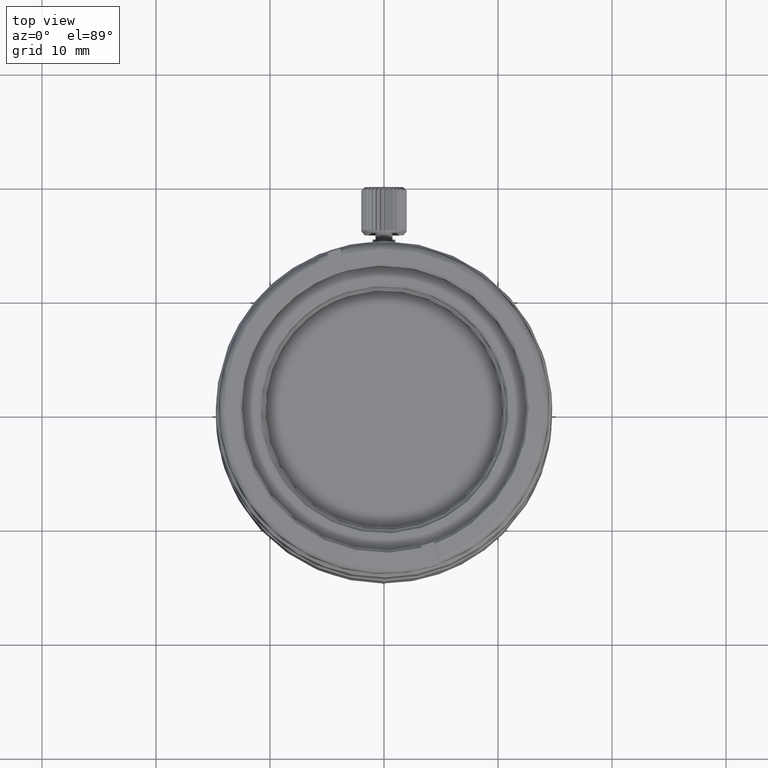
[diagram: clean part render]
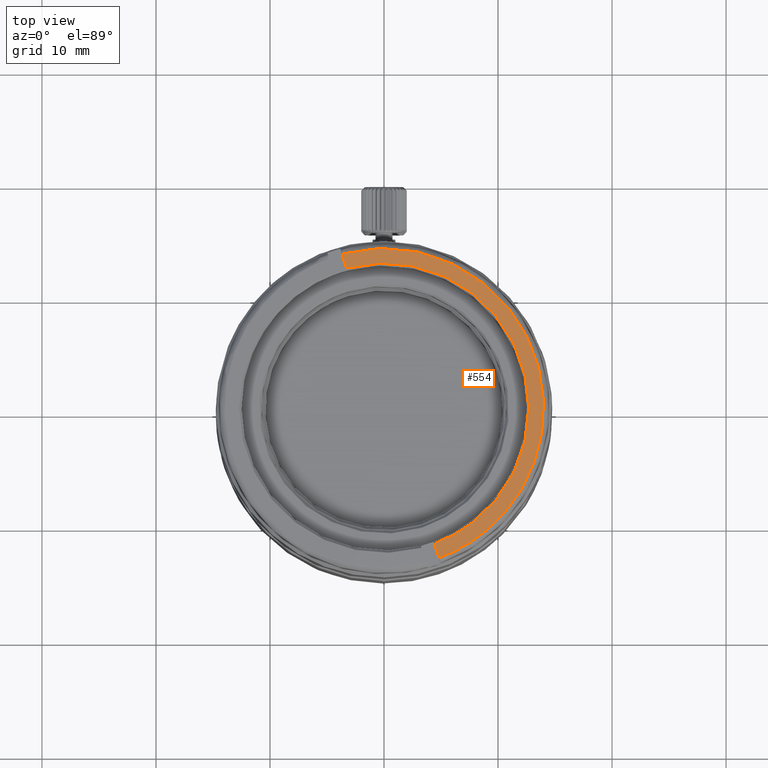
[diagram: same view with one face highlighted and labeled with its STEP entity id]
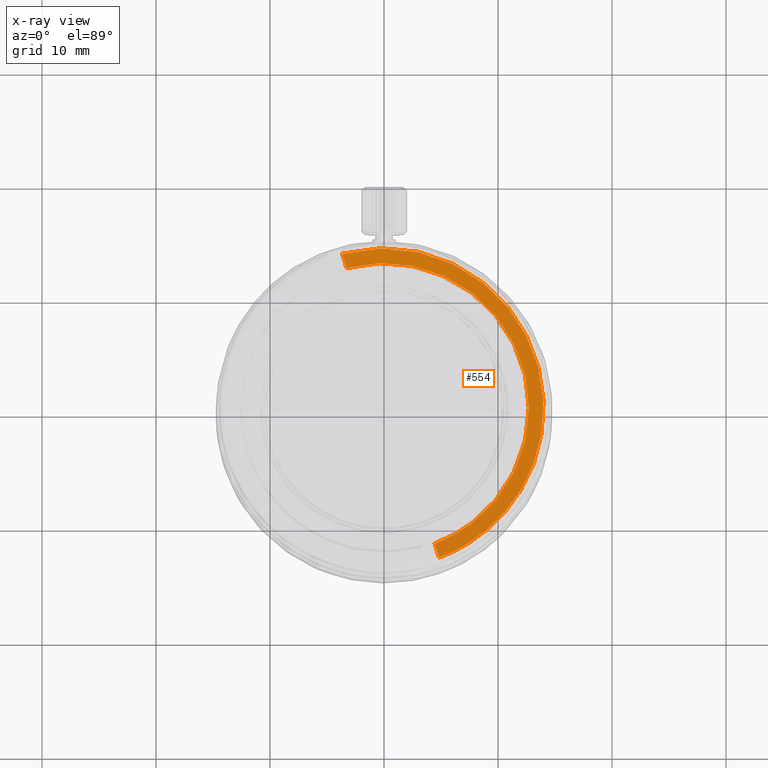
[diagram: x-ray of the same camera — body ghosted, the highlighted face saturated]
A machine part, top view. The second image highlights one B-rep face of the part: STEP entity #554.
The next image is the same camera in x-ray: the body ghosted, the highlighted face saturated — about 0% of this face is hidden behind the body in this view.
In plain terms, the highlighted face is a freeform B-spline surface patch.
Its self-contained STEP definition (entity closure, byte-faithful):
#497 = CARTESIAN_POINT ( 'NONE',  ( 7.465876682930472796, 10.30556155885325786, 24.49405000000000499 ) ) ;
#554 = ADVANCED_FACE ( 'NONE', ( #25909 ), #33187, .T. ) ;
#872 = CARTESIAN_POINT ( 'NONE',  ( 9.281666958346269425, 8.706007802255376404, 24.49405000000000143 ) ) ;
#1064 = CARTESIAN_POINT ( 'NONE',  ( 9.134790406658845896, -8.859995357117346870, 24.49405000000000143 ) ) ;
#1069 = CARTESIAN_POINT ( 'NONE',  ( -3.285456685018839806, 12.26767192274252061, 24.49405000000000143 ) ) ;
#1253 = CARTESIAN_POINT ( 'NONE',  ( -2.504335146187970373, 12.47686736126885165, 24.49404999999999788 ) ) ;
#2580 = VERTEX_POINT ( 'NONE', #11814 ) ;
#3034 = CARTESIAN_POINT ( 'NONE',  ( -3.681115083969284552, 13.50738285817907958, 24.49405000008874822 ) ) ;
#3476 = ORIENTED_EDGE ( 'NONE', *, *, #5802, .T. ) ;
#3547 = B_SPLINE_CURVE_WITH_KNOTS ( 'NONE', 1,
 ( #12857, #21762 ),
 .UNSPECIFIED., .F., .F.,
 ( 2, 2 ),
 ( 0.0000000000000000000, 1.000000000000000000 ),
 .UNSPECIFIED. ) ;
#3790 = CARTESIAN_POINT ( 'NONE',  ( -1.710475090638599038, 12.61024144041737749, 24.49404999999999788 ) ) ;
#3979 = CARTESIAN_POINT ( 'NONE',  ( 11.85288987682190154, 4.631729185113115932, 24.49405000000000499 ) ) ;
#4166 = CARTESIAN_POINT ( 'NONE',  ( 12.51535066283353892, 2.304324530534415771, 24.49405000000000854 ) ) ;
#4370 = CARTESIAN_POINT ( 'NONE',  ( -3.285456685018839806, 12.26767192274252061, 24.49405000000000143 ) ) ;
#5802 = EDGE_CURVE ( 'NONE', #33502, #8748, #7480, .T. ) ;
#6520 = CARTESIAN_POINT ( 'NONE',  ( 2.313296767717000879, 12.51369535586315251, 24.49404999999999788 ) ) ;
#6700 = CARTESIAN_POINT ( 'NONE',  ( 10.64677270396780173, -6.970663190954045518, 24.49405000000000143 ) ) ;
#6889 = CARTESIAN_POINT ( 'NONE',  ( 12.34462032632598572, 3.090997035809843307, 24.49405000000000854 ) ) ;
#7076 = CARTESIAN_POINT ( 'NONE',  ( 8.712660000656747172, 9.275422867443440467, 24.49405000000000143 ) ) ;
#7480 = B_SPLINE_CURVE_WITH_KNOTS ( 'NONE', 1,
 ( #16802, #4370 ),
 .UNSPECIFIED., .F., .F.,
 ( 2, 2 ),
 ( 0.0000000000000000000, 1.000000000000000000 ),
 .UNSPECIFIED. ) ;
#8087 = CARTESIAN_POINT ( 'NONE',  ( 4.824304539534809422, -13.14252965168643961, 24.49405000008874822 ) ) ;
#8748 = VERTEX_POINT ( 'NONE', #1069 ) ;
#9626 = CARTESIAN_POINT ( 'NONE',  ( 0.7074764715387922287, 12.70603756471938972, 24.49405000000000143 ) ) ;
#9997 = CARTESIAN_POINT ( 'NONE',  ( 4.428646141381599399, -11.90281871584750029, 24.49405000000000143 ) ) ;
#10189 = CARTESIAN_POINT ( 'NONE',  ( -3.285456685018839806, 12.26767192274252061, 24.49405000000000143 ) ) ;
#11210 = CARTESIAN_POINT ( 'NONE',  ( 21.17804464604264325, 20.28215402741465923, 24.49405000026620982 ) ) ;
#11814 = CARTESIAN_POINT ( 'NONE',  ( 4.824304539534809422, -13.14252965168643961, 24.49405000008874822 ) ) ;
#12355 = CARTESIAN_POINT ( 'NONE',  ( 11.06619169816922899, -6.283575013519557828, 24.49404999999999433 ) ) ;
#12730 = CARTESIAN_POINT ( 'NONE',  ( 12.60901186090063142, -1.719515477568450024, 24.49405000000000499 ) ) ;
#12857 = CARTESIAN_POINT ( 'NONE',  ( 4.428646141381599399, -11.90281871584750029, 24.49405000000000143 ) ) ;
#12922 = CARTESIAN_POINT ( 'NONE',  ( 5.910886490323105313, -11.26966435381610765, 24.49404999999998722 ) ) ;
#14787 = CARTESIAN_POINT ( 'NONE',  ( -3.681115083969284996, 13.50738285817907958, 24.49405000008874822 ) ) ;
#15235 = ORIENTED_EDGE ( 'NONE', *, *, #26122, .T. ) ;
#15450 = CARTESIAN_POINT ( 'NONE',  ( -0.09727791040563706082, 12.72534677835132300, 24.49405000000000143 ) ) ;
#15822 = CARTESIAN_POINT ( 'NONE',  ( 3.099846646474873513, 12.34240109733587687, 24.49405000000000143 ) ) ;
#16014 = CARTESIAN_POINT ( 'NONE',  ( 12.70654152492688027, 0.6983667666147638231, 24.49405000000000499 ) ) ;
#16802 = CARTESIAN_POINT ( 'NONE',  ( -3.681115083969284996, 13.50738285817907958, 24.49405000008874822 ) ) ;
#18167 = CARTESIAN_POINT ( 'NONE',  ( 7.292506813078943217, -10.42896248246435142, 24.49405000000000143 ) ) ;
#18534 = CARTESIAN_POINT ( 'NONE',  ( 4.640225848390698182, 11.84956614780959860, 24.49404999999999788 ) ) ;
#18720 = CARTESIAN_POINT ( 'NONE',  ( 12.05555788057693078, -4.075222432753488278, 24.49404999999999433 ) ) ;
#18905 = CARTESIAN_POINT ( 'NONE',  ( 9.676687419286809089, -8.264722266277310325, 24.49405000000000143 ) ) ;
#19293 = ORIENTED_EDGE ( 'NONE', *, *, #32649, .T. ) ;
#21452 = CARTESIAN_POINT ( 'NONE',  ( 10.31091152274525058, 7.458486249307456184, 24.49404999999999788 ) ) ;
#21762 = CARTESIAN_POINT ( 'NONE',  ( 4.824304539534809422, -13.14252965168643961, 24.49405000008874822 ) ) ;
#22010 = CARTESIAN_POINT ( 'NONE',  ( 5.380130690147321815, 11.53248052483288255, 24.49405000000000143 ) ) ;
#23021 = CARTESIAN_POINT ( 'NONE',  ( 29.01198377817256713, -4.263818038674846100, 24.49405000026619916 ) ) ;
#23577 = CARTESIAN_POINT ( 'NONE',  ( 4.875337059000000473, -13.30242912900000007, 24.49405000000000143 ) ) ;
#24168 = CARTESIAN_POINT ( 'NONE',  ( 7.937287589460551018, -9.947028661548847239, 24.49405000000000499 ) ) ;
#24542 = CARTESIAN_POINT ( 'NONE',  ( 12.47506868616295606, -2.513279716462199165, 24.49405000000000499 ) ) ;
#24585 = ORIENTED_EDGE ( 'NONE', *, *, #30917, .F. ) ;
#24916 = CARTESIAN_POINT ( 'NONE',  ( 6.799370820828452899, 10.75697309033114735, 24.49405000000000143 ) ) ;
#25816 = EDGE_LOOP ( 'NONE', ( #3476, #19293, #15235, #24585 ) ) ;
#25909 = FACE_OUTER_BOUND ( 'NONE', #25816, .T. ) ;
#26122 = EDGE_CURVE ( 'NONE', #26966, #2580, #3547, .T. ) ;
#26966 = VERTEX_POINT ( 'NONE', #34109 ) ;
#27081 = CARTESIAN_POINT ( 'NONE',  ( 11.53633482957732781, 5.371861166705797608, 24.49405000000000499 ) ) ;
#27270 = CARTESIAN_POINT ( 'NONE',  ( 10.76184509010596280, 6.791656943773323185, 24.49405000000000854 ) ) ;
#30547 = CARTESIAN_POINT ( 'NONE',  ( 11.77378247609233775, -4.829281470589189773, 24.49404999999999788 ) ) ;
#30917 = EDGE_CURVE ( 'NONE', #33502, #2580, #37093, .T. ) ;
#31722 = CARTESIAN_POINT ( 'NONE',  ( 17.71754636899999724, -9.203789816999998763, 24.49405000000000143 ) ) ;
#32649 = EDGE_CURVE ( 'NONE', #8748, #26966, #38322, .T. ) ;
#33187 = B_SPLINE_SURFACE_WITH_KNOTS ( 'NONE', 1, 1, ( 
 ( #23577, #37736 ),
 ( #31722, #35212 ) ),
 .UNSPECIFIED., .F., .F., .F.,
 ( 2, 2 ),
 ( 2, 2 ),
 ( 0.0000000000000000000, 1.000000000000000000 ),
 ( 0.0000000000000000000, 1.000000000000000000 ),
 .UNSPECIFIED. ) ;
#33272 = CARTESIAN_POINT ( 'NONE',  ( 12.72527375426702534, -0.1064012382847165789, 24.49405000000000143 ) ) ;
#33502 = VERTEX_POINT ( 'NONE', #14787 ) ;
#34109 = CARTESIAN_POINT ( 'NONE',  ( 4.428646141381599399, -11.90281871584750029, 24.49405000000000143 ) ) ;
#35212 = CARTESIAN_POINT ( 'NONE',  ( 9.110061707999999925, 17.76592164800000262, 24.49405000000000143 ) ) ;
#35996 = CARTESIAN_POINT ( 'NONE',  ( 5.186536320551152990, -11.62083278739543601, 24.49404999999999788 ) ) ;
#37093 =( BOUNDED_CURVE ( )  B_SPLINE_CURVE ( 3, ( #3034, #11210, #23021, #8087 ),
 .UNSPECIFIED., .F., .F. ) 
 B_SPLINE_CURVE_WITH_KNOTS ( ( 4, 4 ),
 ( 0.0000000000000000000, 3.055852107077114965 ),
 .UNSPECIFIED. ) 
 CURVE ( )  GEOMETRIC_REPRESENTATION_ITEM ( )  RATIONAL_B_SPLINE_CURVE ( ( 0.9383972337661943275, 0.3396104272766298782, 0.3396104272766297671, 0.9383972337661938834 ) ) 
 REPRESENTATION_ITEM ( '' )  );
#37736 = CARTESIAN_POINT ( 'NONE',  ( -3.732147601000000314, 13.66728233600000131, 24.49405000000000143 ) ) ;
#38322 = B_SPLINE_CURVE_WITH_KNOTS ( 'NONE', 3,
 ( #10189, #1253, #3790, #15450, #9626, #6520, #15822, #18534, #22010, #24916, #497, #7076, #872, #21452, #27270, #27081, #3979, #6889, #4166, #16014, #33272, #12730, #24542, #18720, #30547, #12355, #6700, #18905, #1064, #24168, #18167, #12922, #35996, #9997 ),
 .UNSPECIFIED., .F., .F.,
 ( 4, 2, 2, 2, 2, 2, 2, 2, 2, 2, 2, 2, 2, 2, 2, 2, 4 ),
 ( 0.0000000000000000000, 0.1904418299752972943, 0.3808836599505945886, 0.5713254899258919384, 0.7617673199011890661, 0.9522091498764860829, 1.142650979851783211, 1.333092809827080227, 1.523534639802377466, 1.713976469777674483, 1.904418299752971500, 2.094860129728269182, 2.285301959703565977, 2.475743789678863216, 2.666185619654160455, 2.856627449629458138, 3.047069279604755376 ),
 .UNSPECIFIED. ) ;